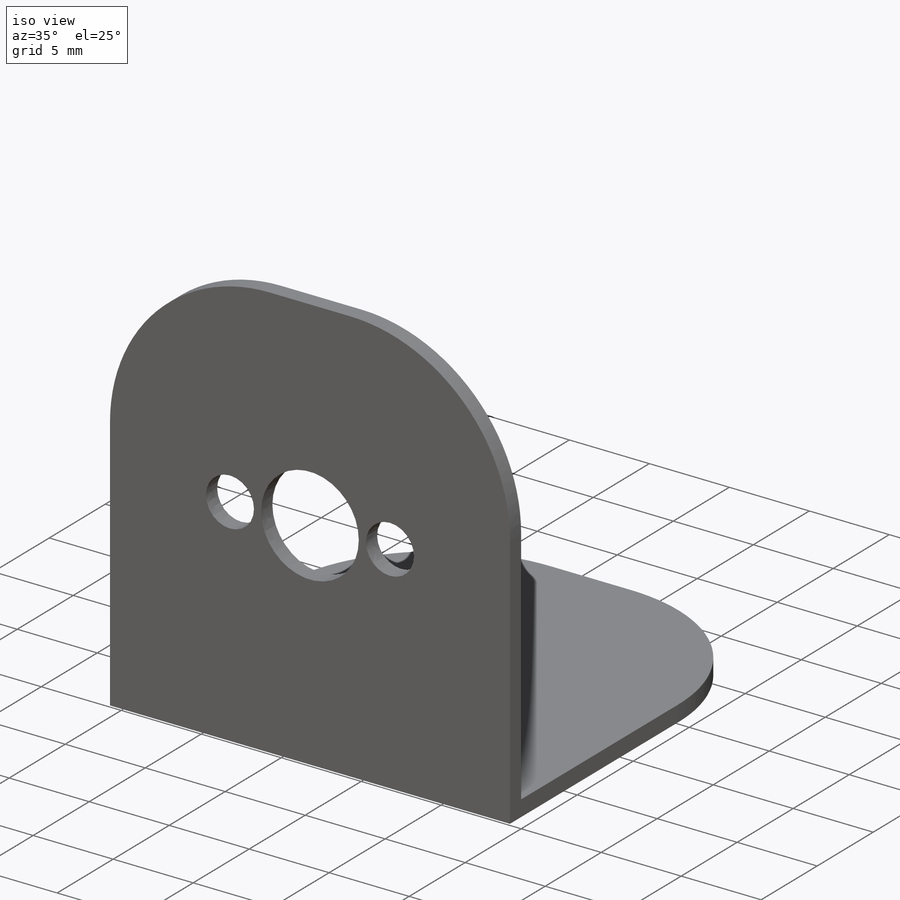
[diagram: iso view]
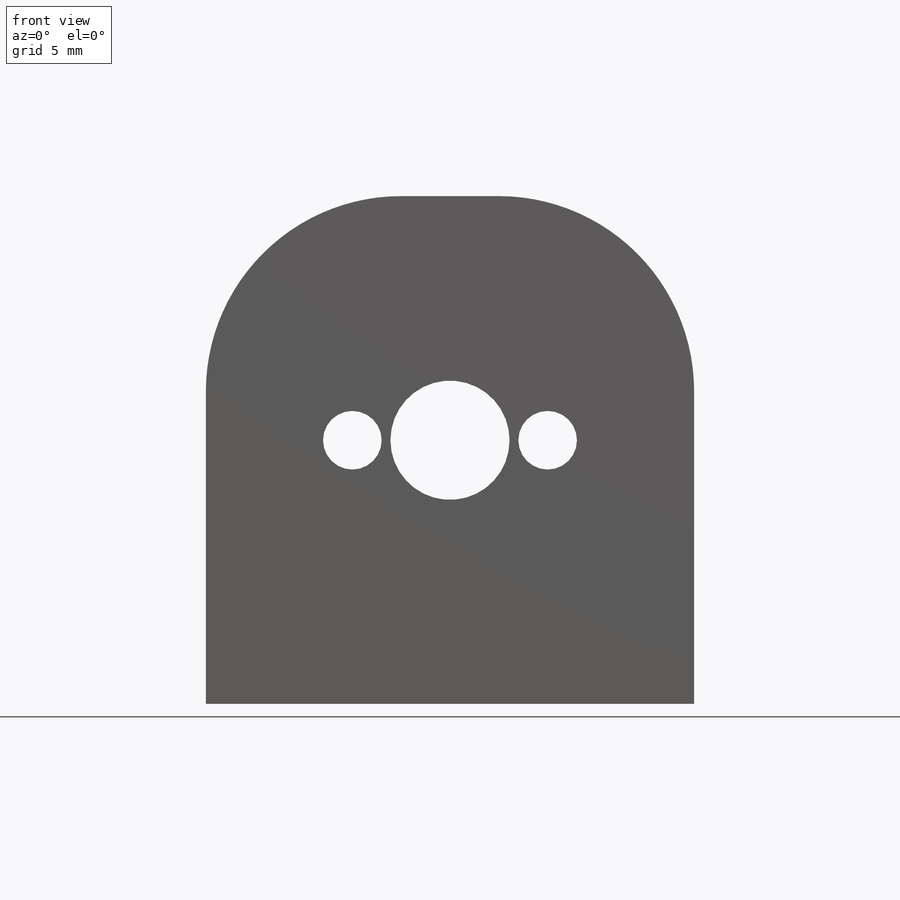
[diagram: front view]
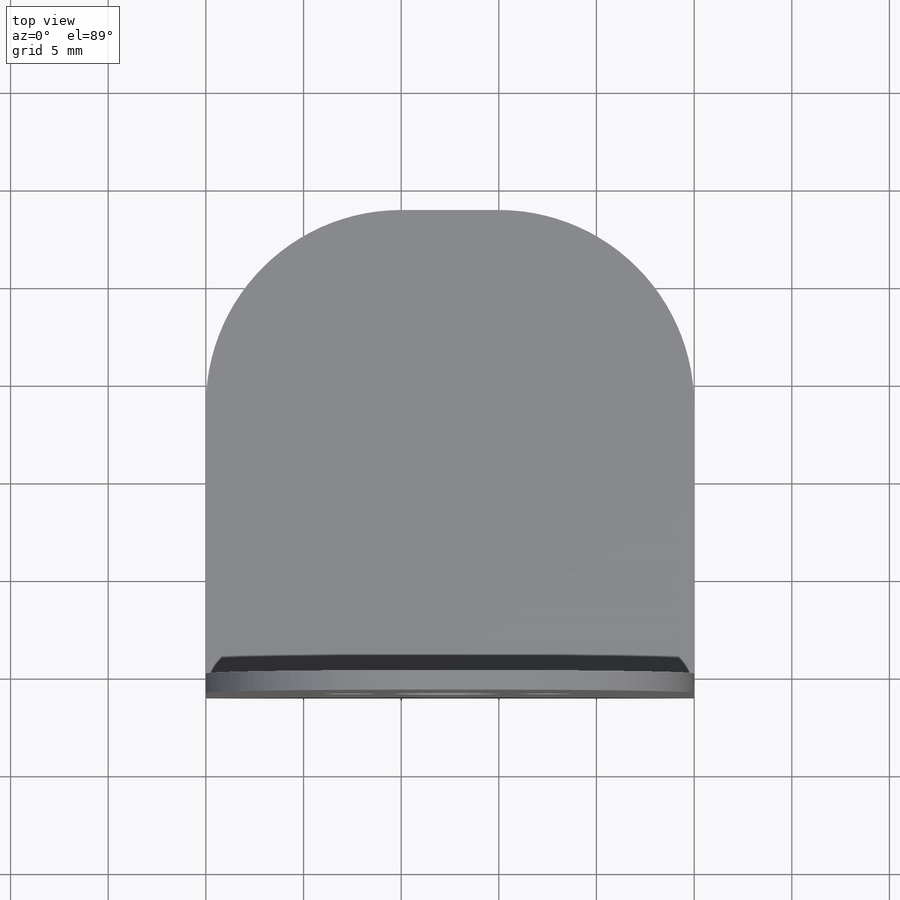
[diagram: top view]
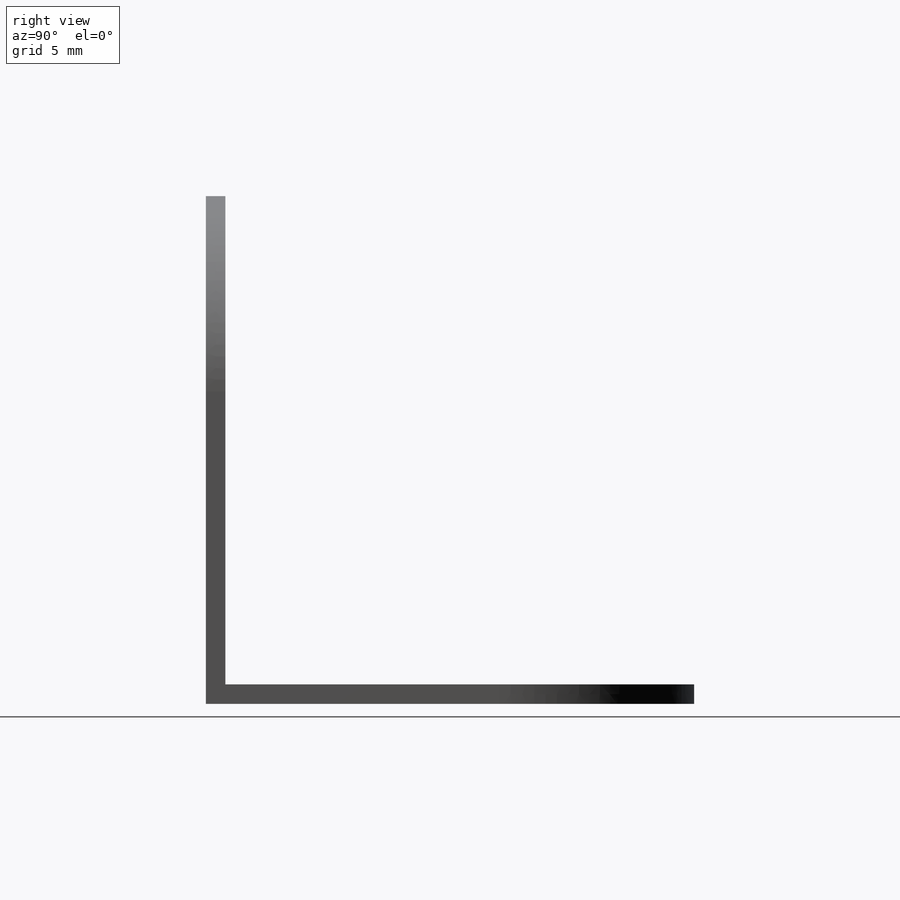
[diagram: right view]
SOLIDWORKS PART (.sldprt)
format: sldprt  version: not decoded by parser v0  size: 284,672 bytes
history: native  units: mm
features: sketch x2, extrude x2, material x1, fillet x1 (+14 scaffold rows collapsed)
feature tree (20):
  scaffold x14  (default folders/planes/origin — collapsed)
  material  "7079 Alloy"
  sketch  "Sketch1"  dims[c1.D3=~2.48579mm c1.D4=6.1mm c1.D5=3.0mm c1.D6=3.0mm c1.D8=6.1mm c1.D1=25.0mm c1.D2=25.0mm c2.D3=10.0mm c2.D7=12.5mm c2.D8=12.5mm]
  extrude  "Extrude1"  Depth=1mm
  sketch  "Sketch2"  dims[D1=25.0mm D2=25.0mm]
  extrude  "Extrude2"  Depth=1mm
  fillet  "Fillet1"  Radius=10mm
decode coverage: 5 of 5 modeling features carry decoded parameters
note: ~ marks probable driven/reference dimensions
note: suppression state not decoded; provenance and decode notes live in map.json
